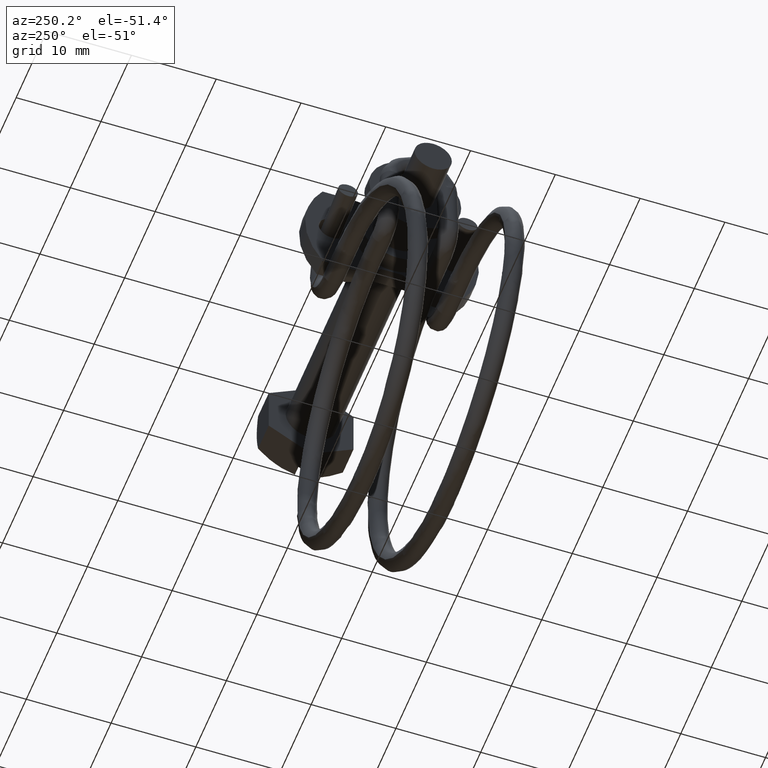
[diagram: clean part render]
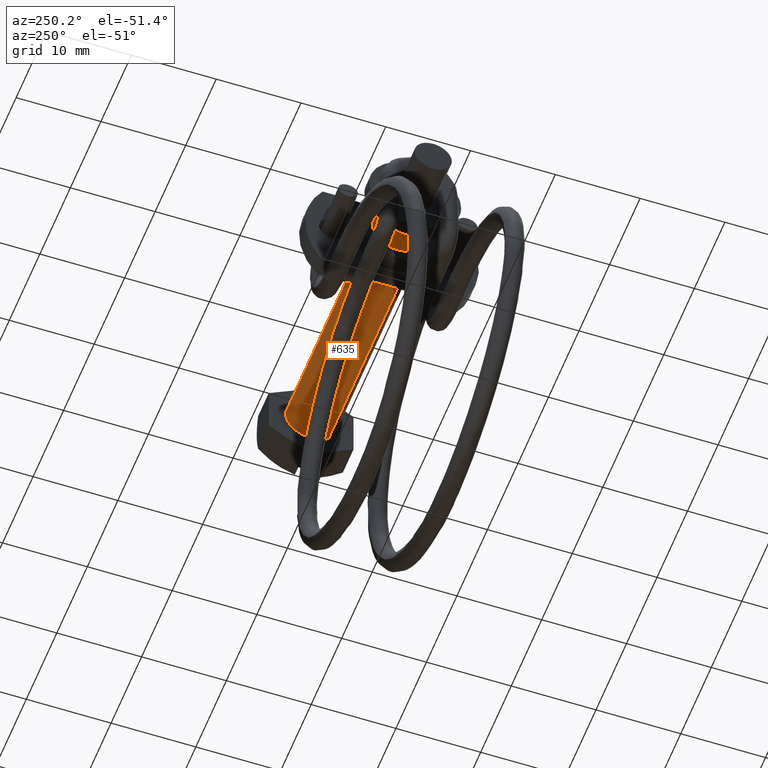
[diagram: same view with one face highlighted and labeled with its STEP entity id]
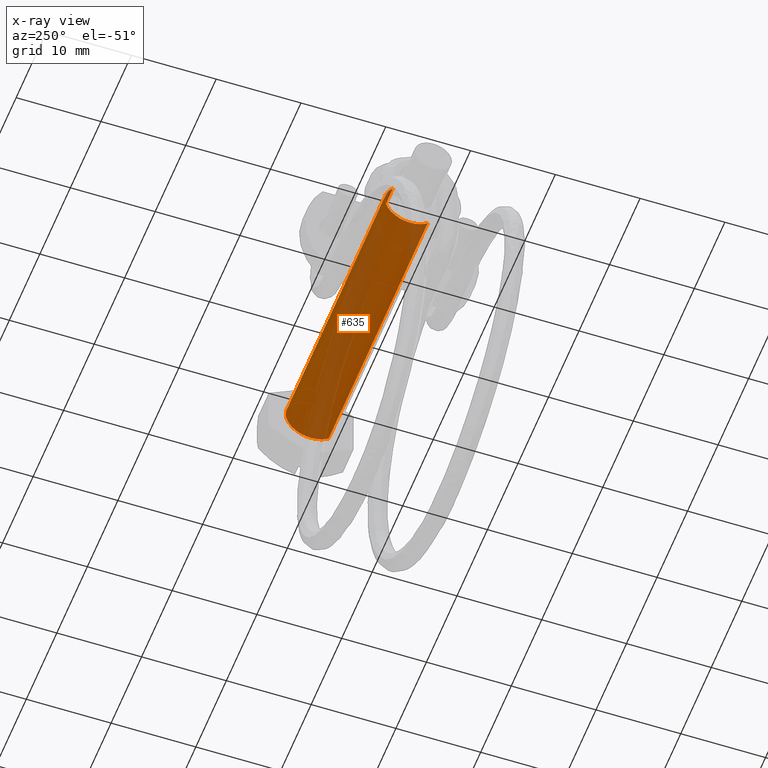
[diagram: x-ray of the same camera — body ghosted, the highlighted face saturated]
A machine part, auxiliary view. The second image highlights one B-rep face of the part: STEP entity #635.
The next image is the same camera in x-ray: the body ghosted, the highlighted face saturated — about 39% of this face is hidden behind the body in this view.
In plain terms, the highlighted face is a freeform B-spline surface patch.
Its self-contained STEP definition (entity closure, byte-faithful):
#480=CARTESIAN_POINT('',(-32.500000000000000,2.999999999999941,-0.000000591770410));
#481=VERTEX_POINT('',#480);
#482=CARTESIAN_POINT('',(-32.500000000000000,0.0,-3.0));
#483=VERTEX_POINT('',#482);
#484=CARTESIAN_POINT('',(-32.500000000000000,2.999999999999941,-0.000000591770410));
#485=CARTESIAN_POINT('',(-32.500000000000007,3.000027864229794,-0.208622633490244));
#486=CARTESIAN_POINT('',(-32.500000000000078,2.965295303015346,-0.539948560415963));
#487=CARTESIAN_POINT('',(-32.499999999999950,2.824288675786553,-1.049486719657561));
#488=CARTESIAN_POINT('',(-32.499999999999957,2.613764974921817,-1.509149390912363));
#489=CARTESIAN_POINT('',(-32.500000000000107,2.298796573756609,-1.950547741097773));
#490=CARTESIAN_POINT('',(-32.499999999999929,1.860913803453262,-2.383179827451412));
#491=CARTESIAN_POINT('',(-32.499999999999829,1.306419617027865,-2.734344774336624));
#492=CARTESIAN_POINT('',(-32.500000000000369,0.638125218306287,-2.955023898899500));
#493=CARTESIAN_POINT('',(-32.499999999999233,0.208621421175989,-3.000027077947107));
#494=CARTESIAN_POINT('',(-32.500000000000000,0.0,-3.0));
#495=B_SPLINE_CURVE_WITH_KNOTS('',3,(#484,#485,#486,#487,#488,#489,#490,#491,#492,#493,#494),.UNSPECIFIED.,.F.,.U.,(4,1,1,1,1,1,1,1,4),(0.000000056999226,0.625864172295514,0.994024497977080,1.583080424838216,2.135330035294290,2.613918650411451,3.423864295656648,4.086552634199831,4.712418215094417),.UNSPECIFIED.);
#496=EDGE_CURVE('',#481,#483,#495,.T.);
#498=CARTESIAN_POINT('',(-32.500000000000000,-2.065063658255466,-2.176122974676176));
#499=VERTEX_POINT('',#498);
#500=CARTESIAN_POINT('',(-32.500000000000000,0.0,-3.0));
#501=CARTESIAN_POINT('',(-32.500000000000043,-0.177941832927050,-3.000014543077144));
#502=CARTESIAN_POINT('',(-32.499999999999872,-0.569409278908517,-2.965082076783929));
#503=CARTESIAN_POINT('',(-32.500000000000327,-1.130480190034565,-2.800915090615048));
#504=CARTESIAN_POINT('',(-32.499999999999503,-1.646651806914992,-2.527949696837233));
#505=CARTESIAN_POINT('',(-32.500000000000320,-1.935998776838885,-2.298620351791487));
#506=CARTESIAN_POINT('',(-32.500000000000000,-2.065063658255466,-2.176122974676176));
#507=B_SPLINE_CURVE_WITH_KNOTS('',3,(#500,#501,#502,#503,#504,#505,#506),.UNSPECIFIED.,.F.,.U.,(4,1,1,1,4),(0.000000013706413,0.533827978557737,1.174414051166197,1.743840052719456,2.277668017562067),.UNSPECIFIED.);
#508=EDGE_CURVE('',#483,#499,#507,.T.);
#536=CARTESIAN_POINT('',(-32.500000000000000,2.065063658255459,2.176122974676167));
#537=VERTEX_POINT('',#536);
#548=CARTESIAN_POINT('',(-32.500000000000000,2.065063658255459,2.176122974676167));
#549=CARTESIAN_POINT('',(-32.500000000000007,2.184648858450356,2.062654149609138));
#550=CARTESIAN_POINT('',(-32.500000000000021,2.421998763816192,1.796956857480499));
#551=CARTESIAN_POINT('',(-32.500000000000099,2.742519814131793,1.276240157402605));
#552=CARTESIAN_POINT('',(-32.499999999999822,2.953545542316137,0.659408221616555));
#553=CARTESIAN_POINT('',(-32.500000000000092,3.000021916183627,0.202893622583436));
#554=CARTESIAN_POINT('',(-32.500000000000000,2.999999999999941,-0.000000591770410));
#555=B_SPLINE_CURVE_WITH_KNOTS('',3,(#548,#549,#550,#551,#552,#553,#554),.UNSPECIFIED.,.F.,.U.,(4,1,1,1,4),(0.000000016607903,0.494556880288794,1.065207264564602,1.826063333139873,2.434751105323713),.UNSPECIFIED.);
#556=EDGE_CURVE('',#537,#481,#555,.T.);
#561=CARTESIAN_POINT('',(0.812500000000001,2.065063727081261,2.176123113036862));
#562=CARTESIAN_POINT('',(0.812500000000001,4.241186840118123,0.111059385955601));
#563=CARTESIAN_POINT('',(0.812500000000001,2.176123113036862,-2.065063727081261));
#564=CARTESIAN_POINT('',(0.812500000000001,0.111059385955601,-4.241186840118123));
#565=CARTESIAN_POINT('',(0.812500000000001,-2.065063727081261,-2.176123113036862));
#566=CARTESIAN_POINT('',(-33.332812500000003,2.065063727081261,2.176123113036862));
#567=CARTESIAN_POINT('',(-33.332812500000003,4.241186840118123,0.111059385955601));
#568=CARTESIAN_POINT('',(-33.332812500000003,2.176123113036862,-2.065063727081261));
#569=CARTESIAN_POINT('',(-33.332812500000003,0.111059385955601,-4.241186840118123));
#570=CARTESIAN_POINT('',(-33.332812500000003,-2.065063727081261,-2.176123113036862));
#578=(BOUNDED_SURFACE()B_SPLINE_SURFACE(2,1,((#561,#566),(#562,#567),(#563,#568),(#564,#569),(#565,#570)),.UNSPECIFIED.,.F.,.F.,.U.)B_SPLINE_SURFACE_WITH_KNOTS((3,2,3),(2,2),(0.0,4.970562748477139,9.941125496954278),(0.0,34.145312500000010),.UNSPECIFIED.)GEOMETRIC_REPRESENTATION_ITEM()RATIONAL_B_SPLINE_SURFACE(((1.0,1.0),(0.707106781186548,0.707106781186548),(1.0,1.0),(0.707106781186548,0.707106781186548),(1.0,1.0)))REPRESENTATION_ITEM('')SURFACE());
#579=CARTESIAN_POINT('',(-1.221245E-013,2.065063658649902,2.176122974301869));
#580=VERTEX_POINT('',#579);
#581=CARTESIAN_POINT('',(0.0,2.999999999999941,-0.000000591770363));
#582=VERTEX_POINT('',#581);
#583=CARTESIAN_POINT('',(-1.221245E-013,2.065063658649902,2.176122974301869));
#584=CARTESIAN_POINT('',(-1.133088E-013,2.230674636906175,2.019035859819043));
#585=CARTESIAN_POINT('',(-9.628560E-014,2.484729438771043,1.715701858218657));
#586=CARTESIAN_POINT('',(-6.809982E-014,2.759695707122571,1.213462452215050));
#587=CARTESIAN_POINT('',(-3.700464E-014,2.949306779475131,0.659380903506474));
#588=CARTESIAN_POINT('',(-1.352178E-014,3.000056127042248,0.240942477908825));
#589=CARTESIAN_POINT('',(0.0,2.999999999999941,-0.000000591770363));
#590=B_SPLINE_CURVE_WITH_KNOTS('',3,(#583,#584,#585,#586,#587,#588,#589),.UNSPECIFIED.,.F.,.U.,(4,1,1,1,4),(0.000000016607851,0.684774065866277,1.179341516996240,1.711932424264203,2.434751104779889),.UNSPECIFIED.);
#591=EDGE_CURVE('',#580,#582,#590,.T.);
#592=ORIENTED_EDGE('',*,*,#591,.T.);
#593=CARTESIAN_POINT('',(0.0,0.0,-3.0));
#594=VERTEX_POINT('',#593);
#595=CARTESIAN_POINT('',(0.0,2.999999999999941,-0.000000591770363));
#596=CARTESIAN_POINT('',(0.0,3.000031991522810,-0.208622791252452));
#597=CARTESIAN_POINT('',(0.0,2.961437626271282,-0.576765373368164));
#598=CARTESIAN_POINT('',(0.0,2.817875665373934,-1.060668448389724));
#599=CARTESIAN_POINT('',(0.0,2.605076221865633,-1.517876564888169));
#600=CARTESIAN_POINT('',(0.0,2.316332950108266,-1.933262043780710));
#601=CARTESIAN_POINT('',(0.0,1.948454868357270,-2.296598932938942));
#602=CARTESIAN_POINT('',(0.0,1.509677117584594,-2.613798015268657));
#603=CARTESIAN_POINT('',(0.0,0.871219950858277,-2.911071585791564));
#604=CARTESIAN_POINT('',(0.0,0.319081396312784,-3.000148259963097));
#605=CARTESIAN_POINT('',(0.0,0.0,-3.0));
#606=B_SPLINE_CURVE_WITH_KNOTS('',3,(#595,#596,#597,#598,#599,#600,#601,#602,#603,#604,#605),.UNSPECIFIED.,.F.,.U.,(4,1,1,1,1,1,1,1,4),(0.000000057000642,0.625864172296694,1.104473150049560,1.509452215383813,2.135330035295004,2.613918650412019,3.055699416251233,3.755212074222709,4.712418215094432),.UNSPECIFIED.);
#607=EDGE_CURVE('',#582,#594,#606,.T.);
#608=ORIENTED_EDGE('',*,*,#607,.T.);
#609=CARTESIAN_POINT('',(-1.221245E-013,-2.065063658649894,-2.176122974301861));
#610=VERTEX_POINT('',#609);
#611=CARTESIAN_POINT('',(0.0,0.0,-3.0));
#612=CARTESIAN_POINT('',(-1.824165E-014,-0.308456943512526,-3.000160662608554));
#613=CARTESIAN_POINT('',(-4.699842E-014,-0.794719272760394,-2.924293207856868));
#614=CARTESIAN_POINT('',(-8.856276E-014,-1.497551137634306,-2.629264165813296));
#615=CARTESIAN_POINT('',(-1.104239E-013,-1.867211150294812,-2.364019503636994));
#616=CARTESIAN_POINT('',(-1.221245E-013,-2.065063658649894,-2.176122974301861));
#617=B_SPLINE_CURVE_WITH_KNOTS('',3,(#611,#612,#613,#614,#615,#616),.UNSPECIFIED.,.F.,.U.,(4,1,1,4),(0.000000013706318,0.925305690143485,1.459128220674443,2.277668018105842),.UNSPECIFIED.);
#618=EDGE_CURVE('',#594,#610,#617,.T.);
#619=ORIENTED_EDGE('',*,*,#618,.T.);
#620=CARTESIAN_POINT('',(-1.221245E-013,-2.065063658649894,-2.176122974301861));
#621=CARTESIAN_POINT('',(-32.500000000000000,-2.065063658255466,-2.176122974676176));
#622=QUASI_UNIFORM_CURVE('',1,(#620,#621),.UNSPECIFIED.,.F.,.U.);
#623=EDGE_CURVE('',#610,#499,#622,.T.);
#624=ORIENTED_EDGE('',*,*,#623,.T.);
#625=ORIENTED_EDGE('',*,*,#508,.F.);
#626=ORIENTED_EDGE('',*,*,#496,.F.);
#627=ORIENTED_EDGE('',*,*,#556,.F.);
#628=CARTESIAN_POINT('',(-1.221245E-013,2.065063658649902,2.176122974301869));
#629=CARTESIAN_POINT('',(-32.500000000000000,2.065063658255459,2.176122974676167));
#630=QUASI_UNIFORM_CURVE('',1,(#628,#629),.UNSPECIFIED.,.F.,.U.);
#631=EDGE_CURVE('',#580,#537,#630,.T.);
#632=ORIENTED_EDGE('',*,*,#631,.F.);
#633=EDGE_LOOP('',(#592,#608,#619,#624,#625,#626,#627,#632));
#634=FACE_OUTER_BOUND('',#633,.T.);
#635=ADVANCED_FACE('',(#634),#578,.T.);